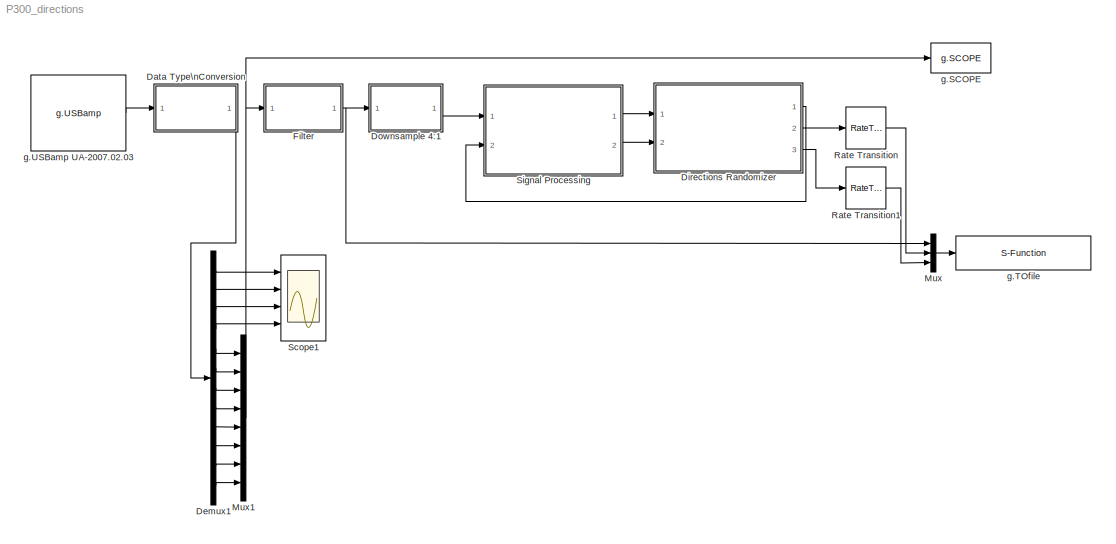
MODEL P300_directions
KIND model
CONFIG InitFcn = \nclear global handle\n\nclear global userData\n\nif exist('P300classifier') ~=1\nglobal P300classifier\nP300classifier.method = 0;\nend
CONFIG PreLoadFcn = \n
CONFIG StartFcn = set_param('P300_directions/Directions Randomizer/StopSimu','Gain','0');\n\n
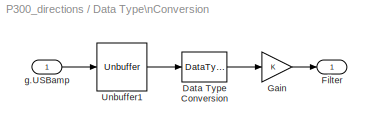
BLOCK [SubSystem] Data Type\nConversion
  FunctionWithSeparateData = off
  MaskHideContents = off
  MinAlgLoopOccurrences = off
  Opaque = off
  Ports = [1, 1]
  PropExecContextOutsideSubsystem = off
  RTWSystemCode = Auto
  RequestExecContextInheritance = off
  SID = 1
BLOCK [DataTypeConversion] Data Type\nConversion/Data Type Conversion
  OutDataTypeStr = double
  RndMeth = Floor
  SID = 3
  SaturateOnIntegerOverflow = off
BLOCK [Outport] Data Type\nConversion/Filter
  IconDisplay = Port number
  SID = 6
BLOCK [Gain] Data Type\nConversion/Gain
  SID = 4
  SampleTime = 1/256
BLOCK [Unbuffer] Data Type\nConversion/Unbuffer1
  Ports = [1, 1]
  SID = 5
BLOCK [Inport] Data Type\nConversion/g.USBamp
  IconDisplay = Port number
  Priority = 1
  SID = 2
BLOCK [Demux] Demux1
  DisplayOption = bar
  Outputs = 12
  Ports = [1, 12]
  SID = 8
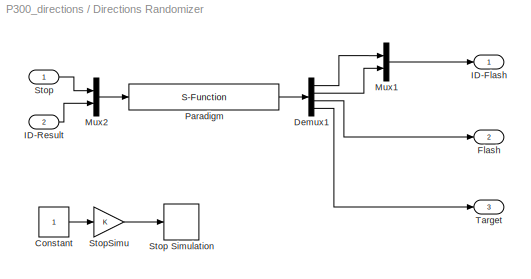
BLOCK [SubSystem] Directions Randomizer
  FunctionWithSeparateData = off
  MaskHideContents = off
  MinAlgLoopOccurrences = off
  Opaque = off
  Ports = [2, 3]
  PropExecContextOutsideSubsystem = off
  RTWSystemCode = Auto
  RequestExecContextInheritance = off
  SID = 9
BLOCK [Constant] Directions Randomizer/Constant
  SID = 12
BLOCK [Demux] Directions Randomizer/Demux1
  DisplayOption = bar
  Ports = [1, 4]
  SID = 13
BLOCK [Outport] Directions Randomizer/Flash
  IconDisplay = Port number
  Port = 2
  SID = 20
BLOCK [Outport] Directions Randomizer/ID-Flash
  IconDisplay = Port number
  SID = 19
BLOCK [Inport] Directions Randomizer/ID-Result
  IconDisplay = Port number
  Port = 2
  SID = 11
BLOCK [Mux] Directions Randomizer/Mux1
  DisplayOption = bar
  Inputs = 2
  Ports = [2, 1]
  SID = 14
BLOCK [Mux] Directions Randomizer/Mux2
  DisplayOption = bar
  Inputs = 2
  Ports = [2, 1]
  SID = 15
BLOCK [S-Function] Directions Randomizer/Paradigm
  EnableBusSupport = off
  FunctionName = P300_speller
  Parameters = mode,flashtime,darktime
  Ports = [1, 1]
  SID = 16
BLOCK [Inport] Directions Randomizer/Stop
  IconDisplay = Port number
  SID = 10
BLOCK [Stop] Directions Randomizer/Stop Simulation
  SID = 17
BLOCK [Gain] Directions Randomizer/StopSimu
  OutDataTypeStr = Inherit: Inherit via internal rule
  ParamDataTypeStr = Inherit: Inherit via internal rule
  SID = 18
  SaturateOnIntegerOverflow = off
BLOCK [Outport] Directions Randomizer/Target
  IconDisplay = Port number
  Port = 3
  SID = 21
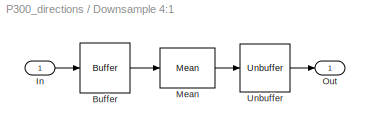
BLOCK [SubSystem] Downsample 4:1
  FunctionWithSeparateData = off
  MaskHideContents = off
  MinAlgLoopOccurrences = off
  Opaque = off
  Ports = [1, 1]
  PropExecContextOutsideSubsystem = off
  RTWSystemCode = Auto
  RequestExecContextInheritance = off
  SID = 28
BLOCK [Buffer] Downsample 4:1/Buffer
  N = 4
  SID = 30
BLOCK [Inport] Downsample 4:1/In
  IconDisplay = Port number
  SID = 29
BLOCK [Reference] Downsample 4:1/Mean  REF=dspstat3/Mean
  InputProcessing = Columns as channels (frame based)
  LockScale = off
  Ports = [1, 1]
  SID = 31
  SourceBlock = dspstat3/Mean
  SourceType = Mean
  UserData = DataTag0
  UserDataPersistent = on
  accumDataTypeStr = Inherit: Same as input
  accumFracLength = 30
  accumLastDataTypeStr = Inherit: Same as input
  accumMode = Same as input
  accumWordLength = 32
  additionalParams = off
  allowOverrides = on
  dimension = 1
  directionMode = Each column
  outputDataTypeStr = Inherit: Same as accumulator
  outputFracLength = 30
  outputLastDataTypeStr = Inherit: Same as accumulator
  outputMax = []
  outputMin = []
  outputMode = Same as accumulator
  outputWordLength = 32
  overflowMode = off
  reset_popup = None
  roiEnable = off
  roiFlag = off
  roiOutput = Individual statistics for each ROI
  roiPortion = Entire ROI
  roiType = Rectangles
  roundingMode = Floor
  run = off
  treatSBRowAsCol = on
BLOCK [Outport] Downsample 4:1/Out
  IconDisplay = Port number
  SID = 33
BLOCK [Unbuffer] Downsample 4:1/Unbuffer
  Ports = [1, 1]
  SID = 32
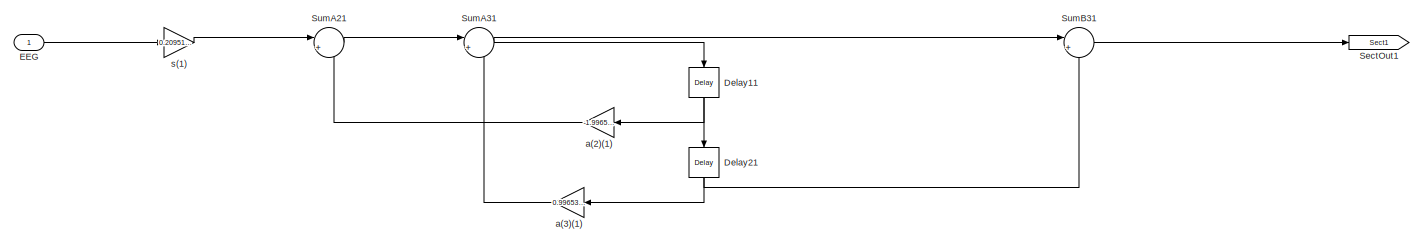
[diagram: Filter - part 1/2, left side, full height]
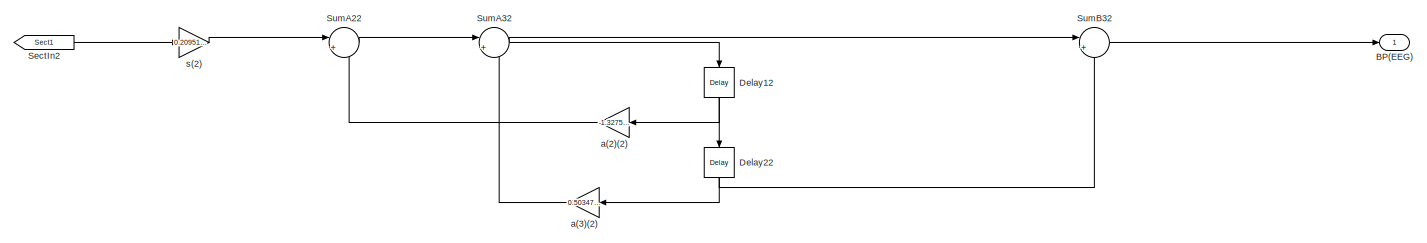
[diagram: Filter - part 2/2, right side, full height]
BLOCK [SubSystem] Filter
  ErrorFcn = dspFilterRealizedInBasicElemsAlgLoopErrFcnCallback
  FunctionWithSeparateData = off
  MaskHideContents = off
  MinAlgLoopOccurrences = off
  Opaque = off
  Ports = [1, 1]
  PropExecContextOutsideSubsystem = off
  RTWSystemCode = Auto
  RequestExecContextInheritance = off
  SID = 34
  Tag = FilterWizardSubSystem
BLOCK [Outport] Filter/BP(EEG)
  IconDisplay = Port number
  SID = 54
BLOCK [Reference] Filter/Delay11  REF=dspsigops/Delay
  InputProcessing = Inherited (this choice will be removed - see release notes)
  Ports = [1, 1]
  SID = 36
  SourceBlock = dspsigops/Delay
  SourceType = Delay
  UserData = DataTag1
  UserDataPersistent = on
  delay = 1
  dif_ic_for_ch = off
  dif_ic_for_dly = off
  dly_unit = Samples
  ic = 0
  ic_detail = off
  reset_popup = None
BLOCK [Reference] Filter/Delay12  REF=dspsigops/Delay
  InputProcessing = Inherited (this choice will be removed - see release notes)
  Ports = [1, 1]
  SID = 37
  SourceBlock = dspsigops/Delay
  SourceType = Delay
  UserData = DataTag2
  UserDataPersistent = on
  delay = 1
  dif_ic_for_ch = off
  dif_ic_for_dly = off
  dly_unit = Samples
  ic = 0
  ic_detail = off
  reset_popup = None
BLOCK [Reference] Filter/Delay21  REF=dspsigops/Delay
  InputProcessing = Inherited (this choice will be removed - see release notes)
  Ports = [1, 1]
  SID = 38
  SourceBlock = dspsigops/Delay
  SourceType = Delay
  UserData = DataTag3
  UserDataPersistent = on
  delay = 1
  dif_ic_for_ch = off
  dif_ic_for_dly = off
  dly_unit = Samples
  ic = 0
  ic_detail = off
  reset_popup = None
BLOCK [Reference] Filter/Delay22  REF=dspsigops/Delay
  InputProcessing = Inherited (this choice will be removed - see release notes)
  Ports = [1, 1]
  SID = 39
  SourceBlock = dspsigops/Delay
  SourceType = Delay
  UserData = DataTag4
  UserDataPersistent = on
  delay = 1
  dif_ic_for_ch = off
  dif_ic_for_dly = off
  dly_unit = Samples
  ic = 0
  ic_detail = off
  reset_popup = None
BLOCK [Inport] Filter/EEG
  IconDisplay = Port number
  SID = 35
BLOCK [From] Filter/SectIn2
  GotoTag = Sect1
  SID = 40
BLOCK [Goto] Filter/SectOut1
  GotoTag = Sect1
  SID = 41
BLOCK [Sum] Filter/SumA21
  IconShape = round
  Inputs = |+-
  Ports = [2, 1]
  SID = 42
BLOCK [Sum] Filter/SumA22
  IconShape = round
  Inputs = |+-
  Ports = [2, 1]
  SID = 43
BLOCK [Sum] Filter/SumA31
  IconShape = round
  Inputs = |+-
  Ports = [2, 1]
  SID = 44
BLOCK [Sum] Filter/SumA32
  IconShape = round
  Inputs = |+-
  Ports = [2, 1]
  SID = 45
BLOCK [Sum] Filter/SumB31
  IconShape = round
  Inputs = |+-
  Ports = [2, 1]
  SID = 46
BLOCK [Sum] Filter/SumB32
  IconShape = round
  Inputs = |+-
  Ports = [2, 1]
  SID = 47
BLOCK [Gain] Filter/a(2)(1)
  Gain = -1.9965292784560484
  SID = 48
BLOCK [Gain] Filter/a(2)(2)
  Gain = -1.327568652934052
  SID = 49
BLOCK [Gain] Filter/a(3)(1)
  Gain = 0.99653535085853617
  SID = 50
BLOCK [Gain] Filter/a(3)(2)
  Gain = 0.50347557912712471
  SID = 51
BLOCK [Gain] Filter/s(1)
  Gain = 0.20951672859759893
  SID = 52
BLOCK [Gain] Filter/s(2)
  Gain = 0.20951672859759893
  SID = 53
BLOCK [Mux] Mux
  DisplayOption = bar
  Inputs = 3
  Ports = [3, 1]
  SID = 56
BLOCK [Mux] Mux1
  DisplayOption = bar
  Inputs = 8
  Ports = [8, 1]
  SID = 57
BLOCK [RateTransition] Rate Transition
  SID = 60
BLOCK [RateTransition] Rate Transition1
  SID = 61
BLOCK [Scope] Scope1
  DataFormat = StructureWithTime
  Decimation = 4
  Floating = off
  NumInputPorts = 4
  Ports = [4]
  SID = 63
  SampleTime = 0
  SaveName = ScopeData1
  ShowLegends = off
  TickLabels = off
  TimeRange = 6
  YMax = 750~50~200~150
  YMin = -1250~-30~-150~-200
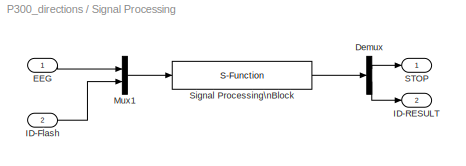
BLOCK [SubSystem] Signal Processing
  FunctionWithSeparateData = off
  MaskHideContents = off
  MinAlgLoopOccurrences = off
  Opaque = off
  Ports = [2, 2]
  PropExecContextOutsideSubsystem = off
  RTWSystemCode = Auto
  RequestExecContextInheritance = off
  SID = 64
BLOCK [Demux] Signal Processing/Demux
  DisplayOption = bar
  Outputs = 2
  Ports = [1, 2]
  SID = 67
BLOCK [Inport] Signal Processing/EEG
  IconDisplay = Port number
  SID = 65
BLOCK [Inport] Signal Processing/ID-Flash
  IconDisplay = Port number
  Port = 2
  SID = 66
BLOCK [Outport] Signal Processing/ID-RESULT
  IconDisplay = Port number
  Port = 2
  SID = 71
BLOCK [Mux] Signal Processing/Mux1
  DisplayOption = bar
  Inputs = 2
  Ports = [2, 1]
  SID = 68
BLOCK [Outport] Signal Processing/STOP
  IconDisplay = Port number
  SID = 70
BLOCK [S-Function] Signal Processing/Signal Processing\nBlock
  EnableBusSupport = off
  FunctionName = P300_process8x
  Parameters = windTime, runmax, channels, method, P300classifier
  Ports = [1, 1]
  SID = 69
BLOCK [Reference] g.SCOPE  REF=gtecHighspeedLib/g.SCOPE
  Ports = [1]
  SID = 81
  SourceBlock = gtecHighspeedLib/g.SCOPE
  SourceType = g.SCOPE
  sdf = off
BLOCK [S-Function] g.TOfile
  EnableBusSupport = off
  FunctionName = gTOfile
  Parameters = filename, varname, filesize, blocksize
  Ports = [1]
  SID = 82
BLOCK [Reference] g.USBamp UA-2007.02.03  REF=gUSBamplib/g.USBamp
  Ports = [2, 1]
  Priority = 2
  SID = 78
  SourceBlock = gUSBamplib/g.USBamp
  cfg = currentCFG_P300_directions_UA-2007.02.03.cfg
  snr = UA-2007.02.03
LINE Data Type\nConversion/Data Type Conversion:1 -> Data Type\nConversion/Gain:1
LINE Data Type\nConversion/Gain:1 -> Data Type\nConversion/Filter:1
LINE Data Type\nConversion/Unbuffer1:1 -> Data Type\nConversion/Data Type Conversion:1
LINE Data Type\nConversion/g.USBamp:1 -> Data Type\nConversion/Unbuffer1:1
LINE Data Type\nConversion:1 -> Demux1:1
LINE Demux1:1 -> Scope1:1
LINE Demux1:10 -> Mux1:6
LINE Demux1:11 -> Mux1:7
LINE Demux1:12 -> Mux1:8
LINE Demux1:2 -> Scope1:2
LINE Demux1:3 -> Scope1:3
LINE Demux1:4 -> Scope1:4
LINE Demux1:5 -> Mux1:1
LINE Demux1:6 -> Mux1:2
LINE Demux1:7 -> Mux1:3
LINE Demux1:8 -> Mux1:4
LINE Demux1:9 -> Mux1:5
LINE Directions Randomizer/Constant:1 -> Directions Randomizer/StopSimu:1
LINE Directions Randomizer/Demux1:1 -> Directions Randomizer/Mux1:1
LINE Directions Randomizer/Demux1:2 -> Directions Randomizer/Mux1:2
LINE Directions Randomizer/Demux1:3 -> Directions Randomizer/Flash:1
LINE Directions Randomizer/Demux1:4 -> Directions Randomizer/Target:1
LINE Directions Randomizer/ID-Result:1 -> Directions Randomizer/Mux2:2
LINE Directions Randomizer/Mux1:1 -> Directions Randomizer/ID-Flash:1
LINE Directions Randomizer/Mux2:1 -> Directions Randomizer/Paradigm:1
LINE Directions Randomizer/Paradigm:1 -> Directions Randomizer/Demux1:1
LINE Directions Randomizer/Stop:1 -> Directions Randomizer/Mux2:1
LINE Directions Randomizer/StopSimu:1 -> Directions Randomizer/Stop Simulation:1
LINE Directions Randomizer:1 -> Signal Processing:2
LINE Directions Randomizer:2 -> Rate Transition:1
LINE Directions Randomizer:3 -> Rate Transition1:1
LINE Downsample 4:1/Buffer:1 -> Downsample 4:1/Mean:1
LINE Downsample 4:1/In:1 -> Downsample 4:1/Buffer:1
LINE Downsample 4:1/Mean:1 -> Downsample 4:1/Unbuffer:1
LINE Downsample 4:1/Unbuffer:1 -> Downsample 4:1/Out:1
LINE Downsample 4:1:1 -> Signal Processing:1
NET Filter/Delay11:1 -> Filter/Delay21:1, Filter/a(2)(1):1
NET Filter/Delay12:1 -> Filter/Delay22:1, Filter/a(2)(2):1
NET Filter/Delay21:1 -> Filter/SumB31:2, Filter/a(3)(1):1
NET Filter/Delay22:1 -> Filter/SumB32:2, Filter/a(3)(2):1
LINE Filter/EEG:1 -> Filter/s(1):1
LINE Filter/SectIn2:1 -> Filter/s(2):1
LINE Filter/SumA21:1 -> Filter/SumA31:1
LINE Filter/SumA22:1 -> Filter/SumA32:1
NET Filter/SumA31:1 -> Filter/Delay11:1, Filter/SumB31:1
NET Filter/SumA32:1 -> Filter/Delay12:1, Filter/SumB32:1
LINE Filter/SumB31:1 -> Filter/SectOut1:1
LINE Filter/SumB32:1 -> Filter/BP(EEG):1
LINE Filter/a(2)(1):1 -> Filter/SumA21:2
LINE Filter/a(2)(2):1 -> Filter/SumA22:2
LINE Filter/a(3)(1):1 -> Filter/SumA31:2
LINE Filter/a(3)(2):1 -> Filter/SumA32:2
LINE Filter/s(1):1 -> Filter/SumA21:1
LINE Filter/s(2):1 -> Filter/SumA22:1
NET Filter:1 -> Downsample 4:1:1, Mux:1
NET Mux1:1 -> Filter:1, g.SCOPE:1
LINE Mux:1 -> g.TOfile:1
LINE Rate Transition1:1 -> Mux:3
LINE Rate Transition:1 -> Mux:2
LINE Signal Processing/Demux:1 -> Signal Processing/STOP:1
LINE Signal Processing/Demux:2 -> Signal Processing/ID-RESULT:1
LINE Signal Processing/EEG:1 -> Signal Processing/Mux1:1
LINE Signal Processing/ID-Flash:1 -> Signal Processing/Mux1:2
LINE Signal Processing/Mux1:1 -> Signal Processing/Signal Processing\nBlock:1
LINE Signal Processing/Signal Processing\nBlock:1 -> Signal Processing/Demux:1
LINE Signal Processing:1 -> Directions Randomizer:1
LINE Signal Processing:2 -> Directions Randomizer:2
LINE g.USBamp UA-2007.02.03:1 -> Data Type\nConversion:1
note: NET lines group one-source signal fan-out (src -> all destinations, sorted); 1:1 wires keep LINE
